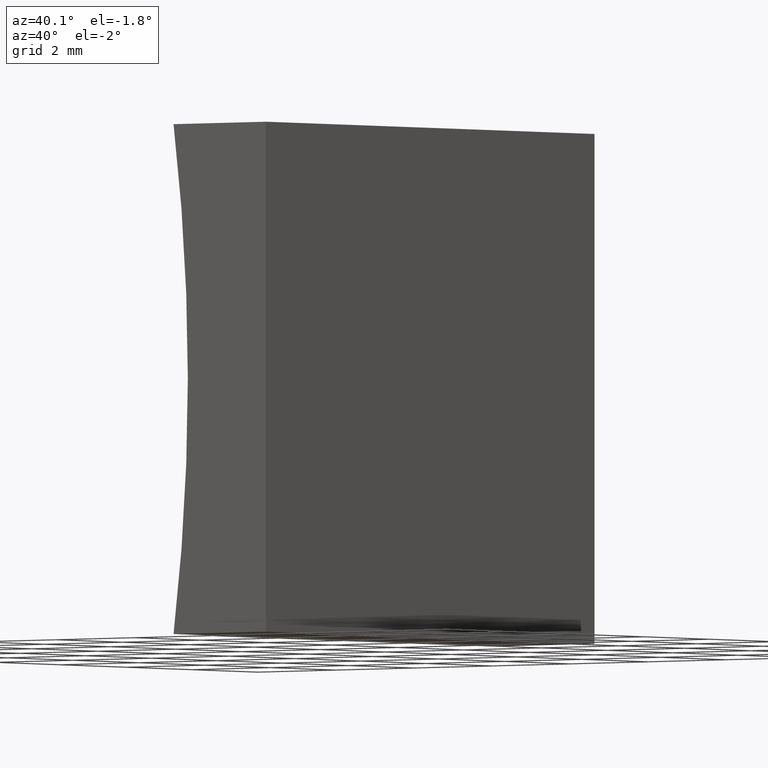
[diagram: clean part render]
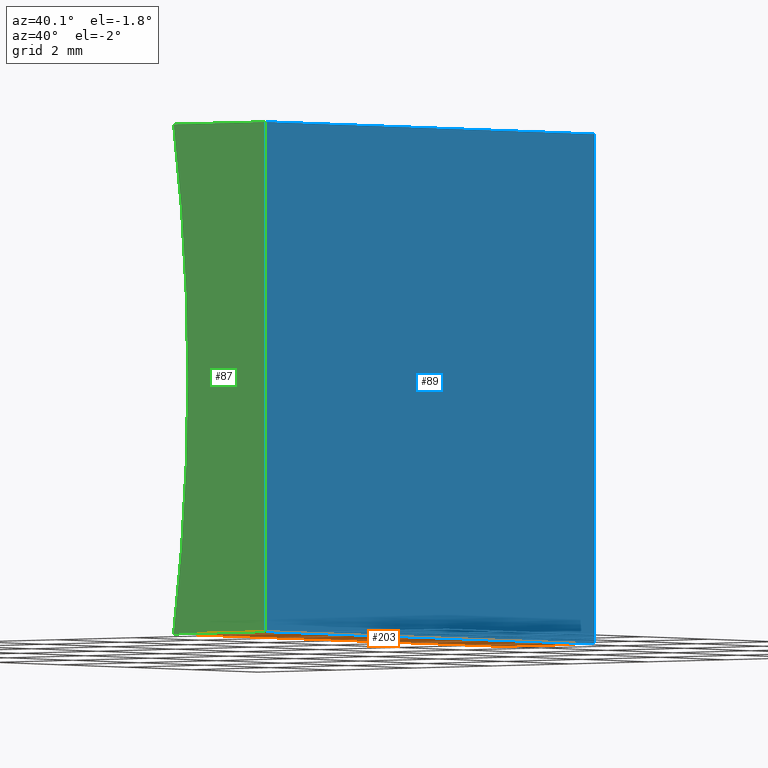
[diagram: same view with three faces highlighted in distinct colors, each labeled with its STEP entity id]
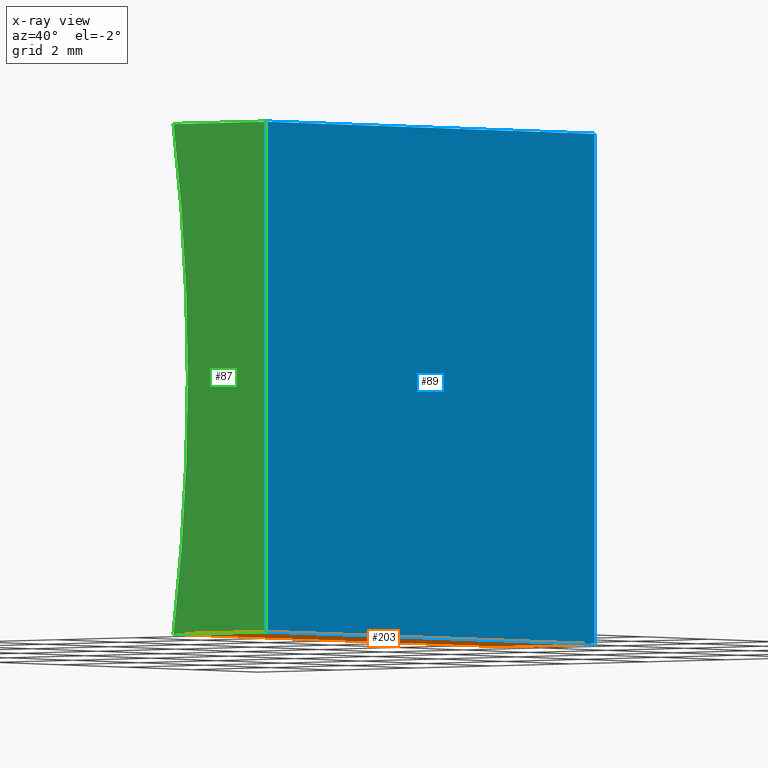
[diagram: x-ray of the same camera — body ghosted, the three highlighted faces saturated]
A machine part, auxiliary view with three faces highlighted in distinct colors.
The next image is the same camera in x-ray (body ghosted, the three faces saturated) — at least one of them is partly hidden behind the body in this view.
Their STEP definitions:

[orange] entity #203 — the highlighted planar face has unit normal (-0, 0, 1).
#5 = ORIENTED_EDGE ( 'NONE', *, *, #108, .F. ) ;
#7 = LINE ( 'NONE', #120, #165 ) ;
#10 = CARTESIAN_POINT ( 'NONE',  ( 0.0000000000000000000, 0.0000000000000000000, 0.0000000000000000000 ) ) ;
#24 = DIRECTION ( 'NONE',  ( -0.0000000000000000000, -1.000000000000000000, -0.0000000000000000000 ) ) ;
#34 = VECTOR ( 'NONE', #192, 1000.000000000000000 ) ;
#39 = VERTEX_POINT ( 'NONE', #181 ) ;
#40 = FACE_OUTER_BOUND ( 'NONE', #158, .T. ) ;
#42 = LINE ( 'NONE', #174, #34 ) ;
#45 = VERTEX_POINT ( 'NONE', #79 ) ;
#46 = CARTESIAN_POINT ( 'NONE',  ( 0.0000000000000000000, 10.00000000000000000, 0.0000000000000000000 ) ) ;
#47 = AXIS2_PLACEMENT_3D ( 'NONE', #46, #96, #64 ) ;
#48 = VERTEX_POINT ( 'NONE', #161 ) ;
#55 = VERTEX_POINT ( 'NONE', #10 ) ;
#57 = CARTESIAN_POINT ( 'NONE',  ( 0.0000000000000000000, 0.0000000000000000000, 0.0000000000000000000 ) ) ;
#64 = DIRECTION ( 'NONE',  ( 1.000000000000000000, 0.0000000000000000000, 7.332349904615358700E-016 ) ) ;
#74 = LINE ( 'NONE', #157, #86 ) ;
#79 = CARTESIAN_POINT ( 'NONE',  ( -2.365849282349278900, 10.00000000000000000, 8.673617379884035500E-016 ) ) ;
#86 = VECTOR ( 'NONE', #178, 1000.000000000000000 ) ;
#90 = ORIENTED_EDGE ( 'NONE', *, *, #140, .T. ) ;
#96 = DIRECTION ( 'NONE',  ( -7.332349904615358700E-016, 0.0000000000000000000, 1.000000000000000000 ) ) ;
#108 = EDGE_CURVE ( 'NONE', #48, #45, #42, .T. ) ;
#116 = ORIENTED_EDGE ( 'NONE', *, *, #190, .F. ) ;
#120 = CARTESIAN_POINT ( 'NONE',  ( 0.0000000000000000000, 10.00000000000000000, 0.0000000000000000000 ) ) ;
#132 = LINE ( 'NONE', #57, #149 ) ;
#140 = EDGE_CURVE ( 'NONE', #55, #39, #132, .T. ) ;
#149 = VECTOR ( 'NONE', #199, 1000.000000000000000 ) ;
#152 = ORIENTED_EDGE ( 'NONE', *, *, #172, .T. ) ;
#156 = PLANE ( 'NONE',  #47 ) ;
#157 = CARTESIAN_POINT ( 'NONE',  ( -2.365849282349278900, 10.00000000000000000, 8.673617379884035500E-016 ) ) ;
#158 = EDGE_LOOP ( 'NONE', ( #90, #116, #5, #152 ) ) ;
#161 = CARTESIAN_POINT ( 'NONE',  ( 0.0000000000000000000, 10.00000000000000000, 0.0000000000000000000 ) ) ;
#165 = VECTOR ( 'NONE', #24, 1000.000000000000000 ) ;
#172 = EDGE_CURVE ( 'NONE', #48, #55, #7, .T. ) ;
#174 = CARTESIAN_POINT ( 'NONE',  ( 0.0000000000000000000, 10.00000000000000000, 0.0000000000000000000 ) ) ;
#178 = DIRECTION ( 'NONE',  ( -0.0000000000000000000, -1.000000000000000000, -0.0000000000000000000 ) ) ;
#181 = CARTESIAN_POINT ( 'NONE',  ( -2.365849282349278900, 0.0000000000000000000, 8.673617379884035500E-016 ) ) ;
#190 = EDGE_CURVE ( 'NONE', #45, #39, #74, .T. ) ;
#192 = DIRECTION ( 'NONE',  ( -1.000000000000000000, 0.0000000000000000000, -7.332349904615358700E-016 ) ) ;
#199 = DIRECTION ( 'NONE',  ( -1.000000000000000000, 0.0000000000000000000, -7.332349904615358700E-016 ) ) ;
#203 = ADVANCED_FACE ( 'NONE', ( #40 ), #156, .F. ) ;

[blue] entity #89 — the highlighted planar face has unit normal (-1, 0, 0).
#6 = ORIENTED_EDGE ( 'NONE', *, *, #147, .T. ) ;
#7 = LINE ( 'NONE', #120, #165 ) ;
#10 = CARTESIAN_POINT ( 'NONE',  ( 0.0000000000000000000, 0.0000000000000000000, 0.0000000000000000000 ) ) ;
#13 = VECTOR ( 'NONE', #32, 1000.000000000000000 ) ;
#20 = LINE ( 'NONE', #117, #13 ) ;
#21 = VERTEX_POINT ( 'NONE', #97 ) ;
#24 = DIRECTION ( 'NONE',  ( -0.0000000000000000000, -1.000000000000000000, -0.0000000000000000000 ) ) ;
#29 = ORIENTED_EDGE ( 'NONE', *, *, #184, .F. ) ;
#30 = VECTOR ( 'NONE', #38, 1000.000000000000000 ) ;
#32 = DIRECTION ( 'NONE',  ( -0.0000000000000000000, -1.000000000000000000, -0.0000000000000000000 ) ) ;
#38 = DIRECTION ( 'NONE',  ( -6.123233995736766000E-017, -0.0000000000000000000, -1.000000000000000000 ) ) ;
#44 = AXIS2_PLACEMENT_3D ( 'NONE', #133, #180, #139 ) ;
#48 = VERTEX_POINT ( 'NONE', #161 ) ;
#55 = VERTEX_POINT ( 'NONE', #10 ) ;
#69 = LINE ( 'NONE', #131, #30 ) ;
#70 = EDGE_CURVE ( 'NONE', #21, #55, #92, .T. ) ;
#85 = VERTEX_POINT ( 'NONE', #179 ) ;
#89 = ADVANCED_FACE ( 'NONE', ( #166 ), #182, .F. ) ;
#92 = LINE ( 'NONE', #145, #164 ) ;
#97 = CARTESIAN_POINT ( 'NONE',  ( 6.123233995736766300E-016, 0.0000000000000000000, 10.00000000000000000 ) ) ;
#117 = CARTESIAN_POINT ( 'NONE',  ( 6.123233995736766300E-016, 10.00000000000000000, 10.00000000000000000 ) ) ;
#120 = CARTESIAN_POINT ( 'NONE',  ( 0.0000000000000000000, 10.00000000000000000, 0.0000000000000000000 ) ) ;
#129 = ORIENTED_EDGE ( 'NONE', *, *, #70, .T. ) ;
#131 = CARTESIAN_POINT ( 'NONE',  ( 0.0000000000000000000, 10.00000000000000000, 0.0000000000000000000 ) ) ;
#133 = CARTESIAN_POINT ( 'NONE',  ( 0.0000000000000000000, 10.00000000000000000, 0.0000000000000000000 ) ) ;
#139 = DIRECTION ( 'NONE',  ( 6.123233995736766000E-017, 0.0000000000000000000, 1.000000000000000000 ) ) ;
#145 = CARTESIAN_POINT ( 'NONE',  ( 0.0000000000000000000, 0.0000000000000000000, 0.0000000000000000000 ) ) ;
#147 = EDGE_CURVE ( 'NONE', #85, #21, #20, .T. ) ;
#150 = ORIENTED_EDGE ( 'NONE', *, *, #172, .F. ) ;
#161 = CARTESIAN_POINT ( 'NONE',  ( 0.0000000000000000000, 10.00000000000000000, 0.0000000000000000000 ) ) ;
#164 = VECTOR ( 'NONE', #173, 1000.000000000000000 ) ;
#165 = VECTOR ( 'NONE', #24, 1000.000000000000000 ) ;
#166 = FACE_OUTER_BOUND ( 'NONE', #183, .T. ) ;
#172 = EDGE_CURVE ( 'NONE', #48, #55, #7, .T. ) ;
#173 = DIRECTION ( 'NONE',  ( -6.123233995736766000E-017, -0.0000000000000000000, -1.000000000000000000 ) ) ;
#179 = CARTESIAN_POINT ( 'NONE',  ( 6.123233995736766300E-016, 10.00000000000000000, 10.00000000000000000 ) ) ;
#180 = DIRECTION ( 'NONE',  ( -1.000000000000000000, 0.0000000000000000000, 6.123233995736766000E-017 ) ) ;
#182 = PLANE ( 'NONE',  #44 ) ;
#183 = EDGE_LOOP ( 'NONE', ( #129, #150, #29, #6 ) ) ;
#184 = EDGE_CURVE ( 'NONE', #85, #48, #69, .T. ) ;

[green] entity #87 — the highlighted planar face has unit normal (0, 1, 0).
#2 = DIRECTION ( 'NONE',  ( 1.000000000000000000, -0.0000000000000000000, -7.332349904615361600E-016 ) ) ;
#10 = CARTESIAN_POINT ( 'NONE',  ( 0.0000000000000000000, 0.0000000000000000000, 0.0000000000000000000 ) ) ;
#16 = CARTESIAN_POINT ( 'NONE',  ( -36.35000000000000100, 0.0000000000000000000, 5.000000000000005300 ) ) ;
#18 = LINE ( 'NONE', #124, #26 ) ;
#19 = FACE_OUTER_BOUND ( 'NONE', #128, .T. ) ;
#21 = VERTEX_POINT ( 'NONE', #97 ) ;
#25 = ORIENTED_EDGE ( 'NONE', *, *, #70, .F. ) ;
#26 = VECTOR ( 'NONE', #2, 1000.000000000000000 ) ;
#31 = DIRECTION ( 'NONE',  ( 0.0000000000000000000, -0.0000000000000000000, 1.000000000000000000 ) ) ;
#36 = CIRCLE ( 'NONE', #195, 34.35000000000000100 ) ;
#39 = VERTEX_POINT ( 'NONE', #181 ) ;
#55 = VERTEX_POINT ( 'NONE', #10 ) ;
#57 = CARTESIAN_POINT ( 'NONE',  ( 0.0000000000000000000, 0.0000000000000000000, 0.0000000000000000000 ) ) ;
#70 = EDGE_CURVE ( 'NONE', #21, #55, #92, .T. ) ;
#73 = CARTESIAN_POINT ( 'NONE',  ( -2.365849282349280300, 0.0000000000000000000, 10.00000000000000200 ) ) ;
#84 = ORIENTED_EDGE ( 'NONE', *, *, #140, .F. ) ;
#87 = ADVANCED_FACE ( 'NONE', ( #19 ), #170, .F. ) ;
#88 = DIRECTION ( 'NONE',  ( 0.0000000000000000000, 1.000000000000000000, 0.0000000000000000000 ) ) ;
#92 = LINE ( 'NONE', #145, #164 ) ;
#97 = CARTESIAN_POINT ( 'NONE',  ( 6.123233995736766300E-016, 0.0000000000000000000, 10.00000000000000000 ) ) ;
#100 = EDGE_CURVE ( 'NONE', #112, #21, #18, .T. ) ;
#112 = VERTEX_POINT ( 'NONE', #73 ) ;
#114 = EDGE_CURVE ( 'NONE', #39, #112, #36, .T. ) ;
#119 = AXIS2_PLACEMENT_3D ( 'NONE', #189, #88, #31 ) ;
#121 = DIRECTION ( 'NONE',  ( -0.0000000000000000000, -1.000000000000000000, -0.0000000000000000000 ) ) ;
#124 = CARTESIAN_POINT ( 'NONE',  ( 6.123233995736766300E-016, 0.0000000000000000000, 10.00000000000000000 ) ) ;
#128 = EDGE_LOOP ( 'NONE', ( #84, #25, #186, #193 ) ) ;
#132 = LINE ( 'NONE', #57, #149 ) ;
#140 = EDGE_CURVE ( 'NONE', #55, #39, #132, .T. ) ;
#145 = CARTESIAN_POINT ( 'NONE',  ( 0.0000000000000000000, 0.0000000000000000000, 0.0000000000000000000 ) ) ;
#149 = VECTOR ( 'NONE', #199, 1000.000000000000000 ) ;
#160 = DIRECTION ( 'NONE',  ( 0.0000000000000000000, 0.0000000000000000000, 1.000000000000000000 ) ) ;
#164 = VECTOR ( 'NONE', #173, 1000.000000000000000 ) ;
#170 = PLANE ( 'NONE',  #119 ) ;
#173 = DIRECTION ( 'NONE',  ( -6.123233995736766000E-017, -0.0000000000000000000, -1.000000000000000000 ) ) ;
#181 = CARTESIAN_POINT ( 'NONE',  ( -2.365849282349278900, 0.0000000000000000000, 8.673617379884035500E-016 ) ) ;
#186 = ORIENTED_EDGE ( 'NONE', *, *, #100, .F. ) ;
#189 = CARTESIAN_POINT ( 'NONE',  ( -36.35000000000000100, 0.0000000000000000000, 5.000000000000005300 ) ) ;
#193 = ORIENTED_EDGE ( 'NONE', *, *, #114, .F. ) ;
#195 = AXIS2_PLACEMENT_3D ( 'NONE', #16, #121, #160 ) ;
#199 = DIRECTION ( 'NONE',  ( -1.000000000000000000, 0.0000000000000000000, -7.332349904615358700E-016 ) ) ;